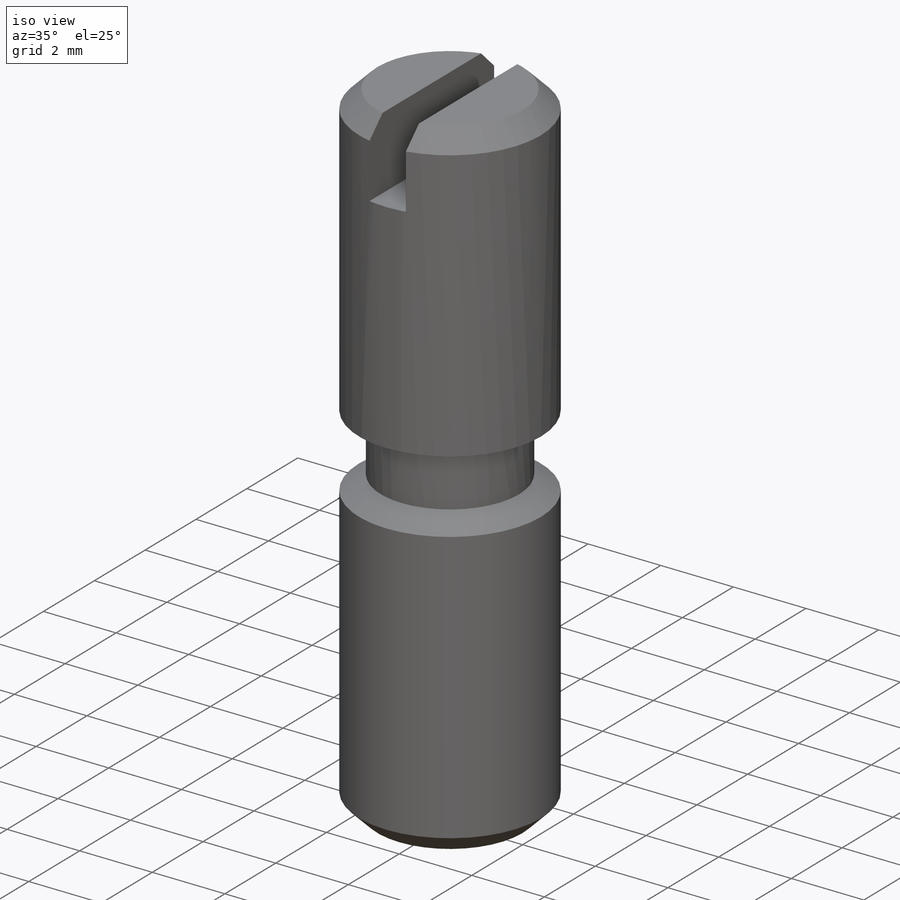
[diagram: iso view]
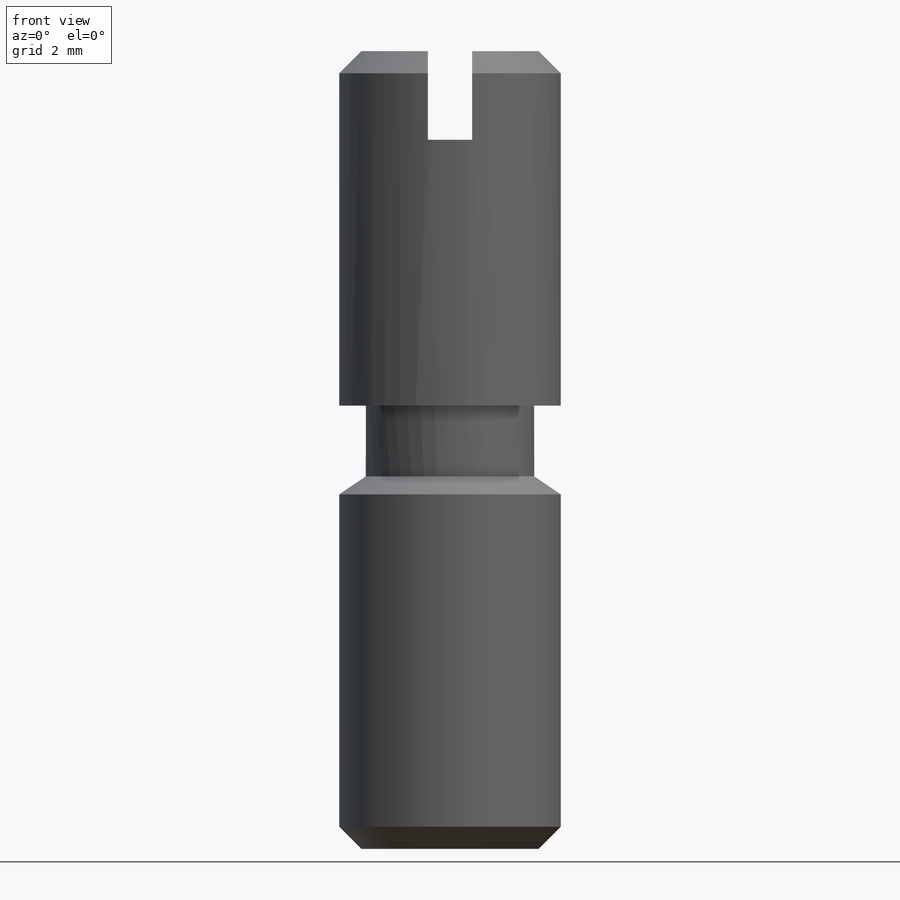
[diagram: front view]
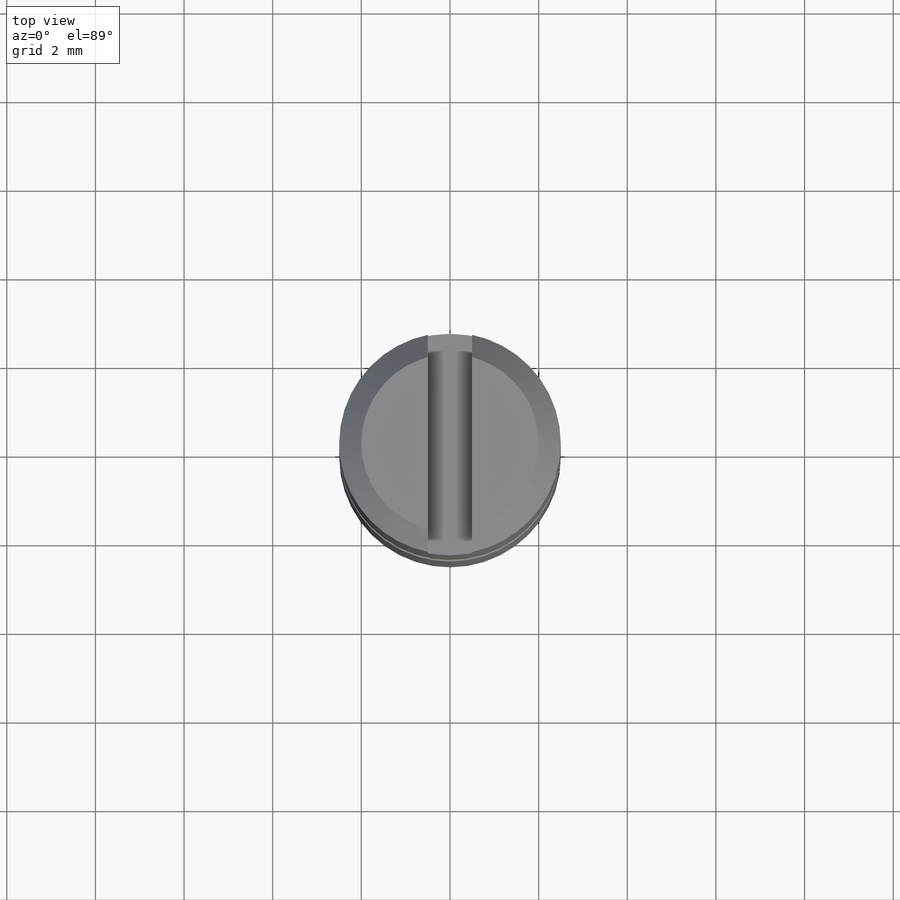
[diagram: top view]
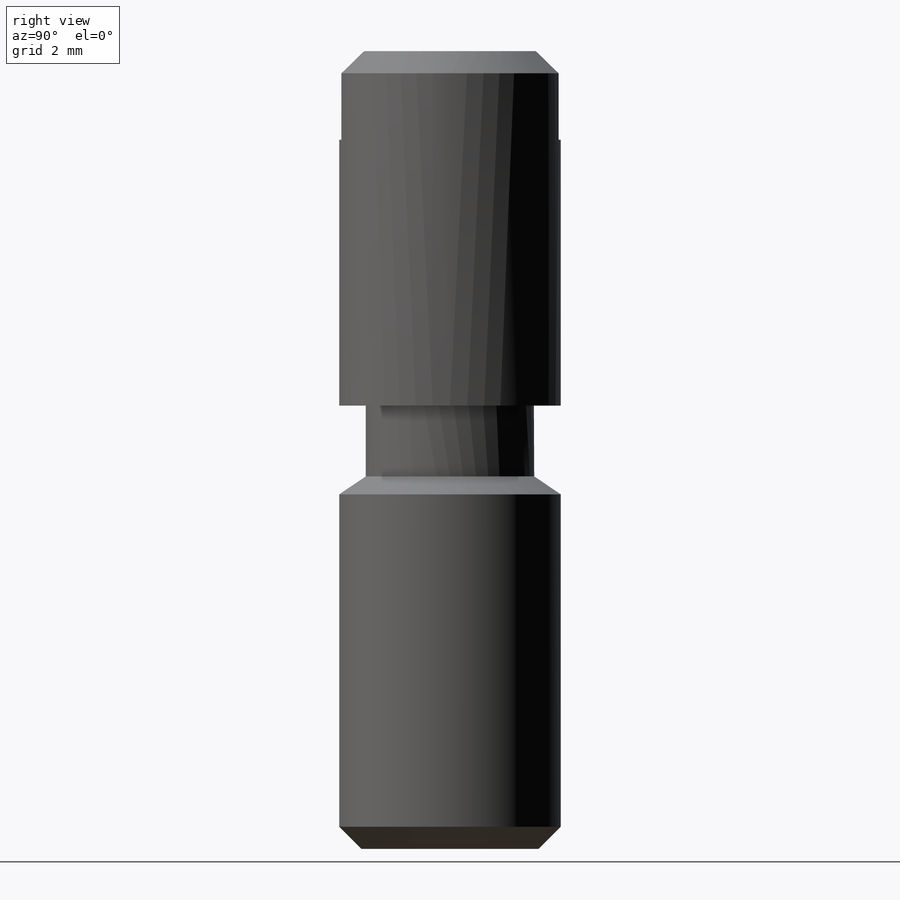
[diagram: right view]
SOLIDWORKS PART (.sldprt)
format: sldprt  version: not decoded by parser v0  size: 251,904 bytes
history: native  units: mm
features: plane x3, sketch x3, material x1, extrude x1, thread x1, cut_extrude x1, chamfer x1, cut_revolve x1 (+9 scaffold rows collapsed)
feature tree (21):
  scaffold x9  (default folders/planes/origin — collapsed)
  material  "Material <nicht festgelegt>"
  plane  "Vorne"
  plane  "Oben"
  plane  "Rechts"
  sketch  "Skizze1"  dims[D1=5.0mm]
  extrude  "Aufsatz-Linear austragen1"  [1 undecoded]
  thread  "Gewindedarstellung1"  Diameter=4mm  [1 undecoded]
  sketch  "Skizze2"  dims[D1=1.0mm D2=0.5mm]
  cut_extrude  "Schnitt-Linear austragen1"  Depth=2mm
  chamfer  "Fase1"  Distance=0.5mm Angle=45deg
  sketch  "Skizze3"  dims[D1=2.0mm D2=8.0mm D3=0.6mm]
  cut_revolve  "Schnitt-Rotation1"  Angle=360deg
decode coverage: 7 of 8 modeling features carry decoded parameters
note: 2 parameter values undecoded
note: suppression state not decoded; provenance and decode notes live in map.json
